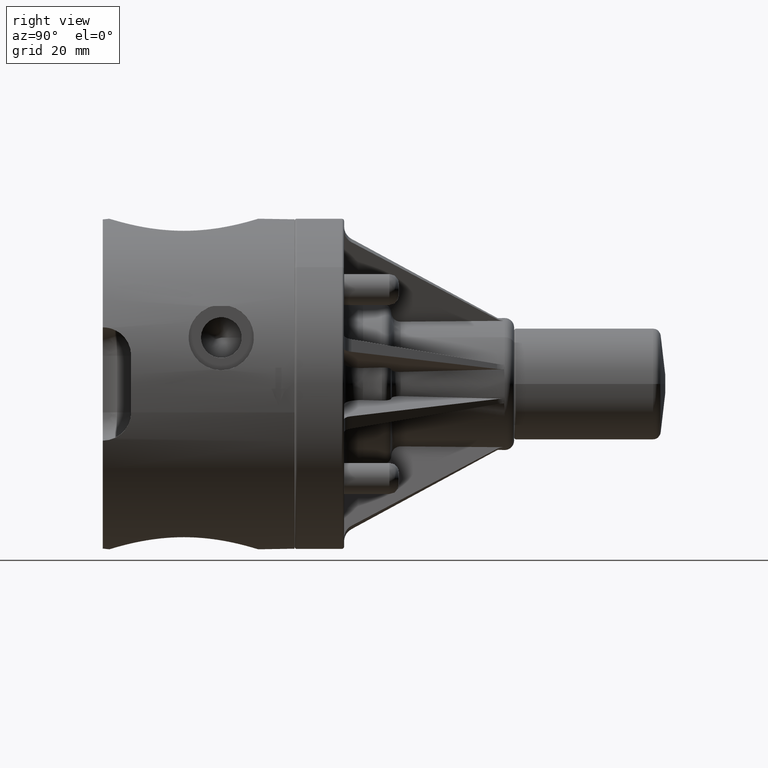
[diagram: clean part render]
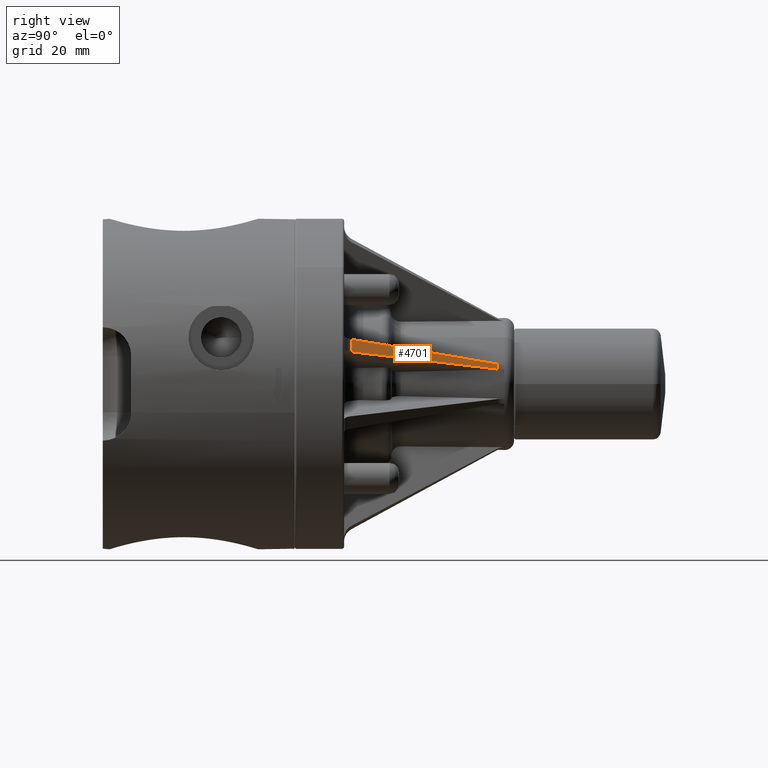
[diagram: same view with one face highlighted and labeled with its STEP entity id]
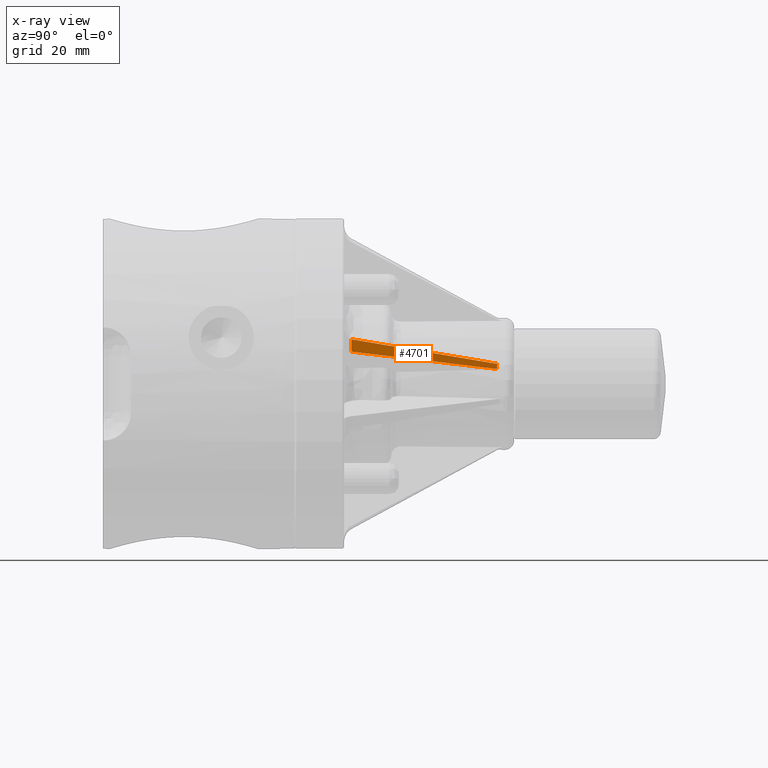
[diagram: x-ray of the same camera — body ghosted, the highlighted face saturated]
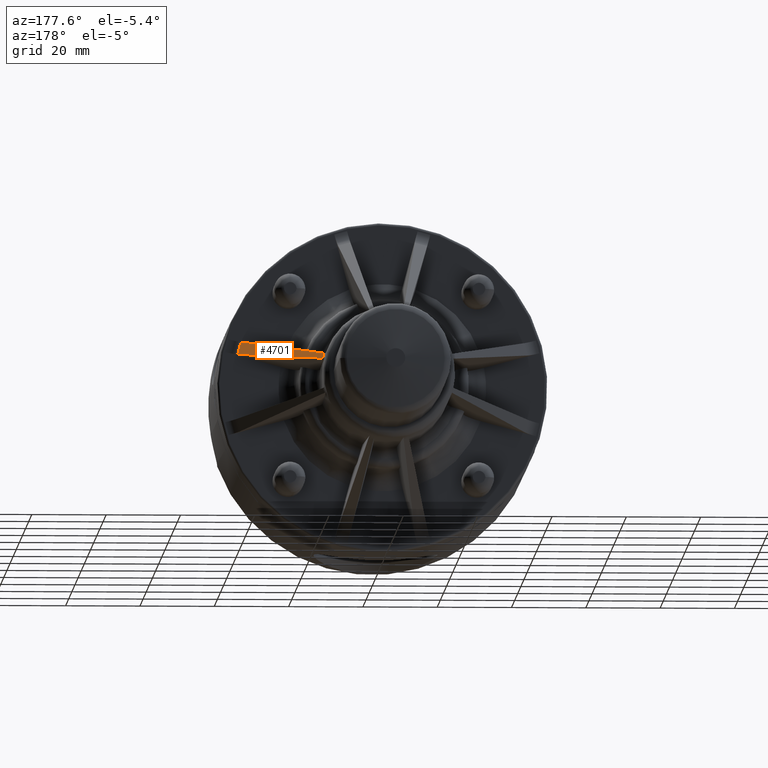
[diagram: same view with one face highlighted and labeled with its STEP entity id]
A machine part, right view. The second image highlights one B-rep face of the part: STEP entity #4701.
The next image is the same camera in x-ray: the body ghosted, the highlighted face saturated — about 0% of this face is hidden behind the body in this view.
A second angle (auxiliary view) of the same face is appended — the face is thin or edge-on in the first view.
In plain terms, the highlighted planar face has unit normal (0.8448, 0.4848, 0.2264).
Its self-contained STEP definition (entity closure, byte-faithful):
#4642=CARTESIAN_POINT('',(1.536881267281476,2.632278556963049,0.341431757273110));
#4643=VERTEX_POINT('',#4642);
#4651=CARTESIAN_POINT('',(1.501694098702735,2.632278556963049,0.472752058183462));
#4652=VERTEX_POINT('',#4651);
#4653=CARTESIAN_POINT('',(1.536881267281476,2.632278556963049,0.341431757273110));
#4654=DIRECTION('',(-0.258819045102522,0.0,0.965925826289068));
#4655=VECTOR('',#4654,0.135952779536771);
#4656=LINE('',#4653,#4655);
#4657=EDGE_CURVE('',#4643,#4652,#4656,.T.);
#4670=CARTESIAN_POINT('',(1.560664278357081,2.555000000000002,0.418178733041881));
#4671=DIRECTION('',(0.844817763307322,0.484809620246339,0.226368237429666));
#4672=DIRECTION('',(0.258819045102522,1.169683E-018,-0.965925826289068));
#4673=AXIS2_PLACEMENT_3D('',#4670,#4671,#4672);
#4674=PLANE('',#4673);
#4675=ORIENTED_EDGE('',*,*,#4657,.F.);
#4676=CARTESIAN_POINT('',(0.701026602313353,4.173880267457618,0.159257474361929));
#4677=VERTEX_POINT('',#4676);
#4678=CARTESIAN_POINT('',(1.536881267281476,2.632278556963049,0.341431757273110));
#4679=DIRECTION('',(-0.474093470997399,0.874390413136919,-0.103328535128913));
#4680=VECTOR('',#4679,1.763058797687405);
#4681=LINE('',#4678,#4680);
#4682=EDGE_CURVE('',#4643,#4677,#4681,.T.);
#4683=ORIENTED_EDGE('',*,*,#4682,.T.);
#4684=CARTESIAN_POINT('',(0.686735583513019,4.173880267457618,0.212592282616697));
#4685=VERTEX_POINT('',#4684);
#4686=CARTESIAN_POINT('',(-0.126722664496098,5.706511786597134,-0.033955235614450));
#4687=DIRECTION('',(0.844817763307322,0.484809620246339,0.226368237429666));
#4688=DIRECTION('',(0.468290133029334,-0.874619707139395,0.125477962968674));
#4689=AXIS2_PLACEMENT_3D('',#4686,#4687,#4688);
#4690=ELLIPSE('',#4689,1.753265538683209,0.850000000000000);
#4691=EDGE_CURVE('',#4685,#4677,#4690,.T.);
#4692=ORIENTED_EDGE('',*,*,#4691,.F.);
#4693=CARTESIAN_POINT('',(1.501694098702735,2.632278556963050,0.472752058183462));
#4694=DIRECTION('',(-0.462241257216545,0.874390413136919,-0.147561599141228));
#4695=VECTOR('',#4694,1.763058797687404);
#4696=LINE('',#4693,#4695);
#4697=EDGE_CURVE('',#4685,#4652,#4696,.F.);
#4698=ORIENTED_EDGE('',*,*,#4697,.T.);
#4699=EDGE_LOOP('',(#4675,#4683,#4692,#4698));
#4700=FACE_OUTER_BOUND('',#4699,.T.);
#4701=ADVANCED_FACE('',(#4700),#4674,.T.);